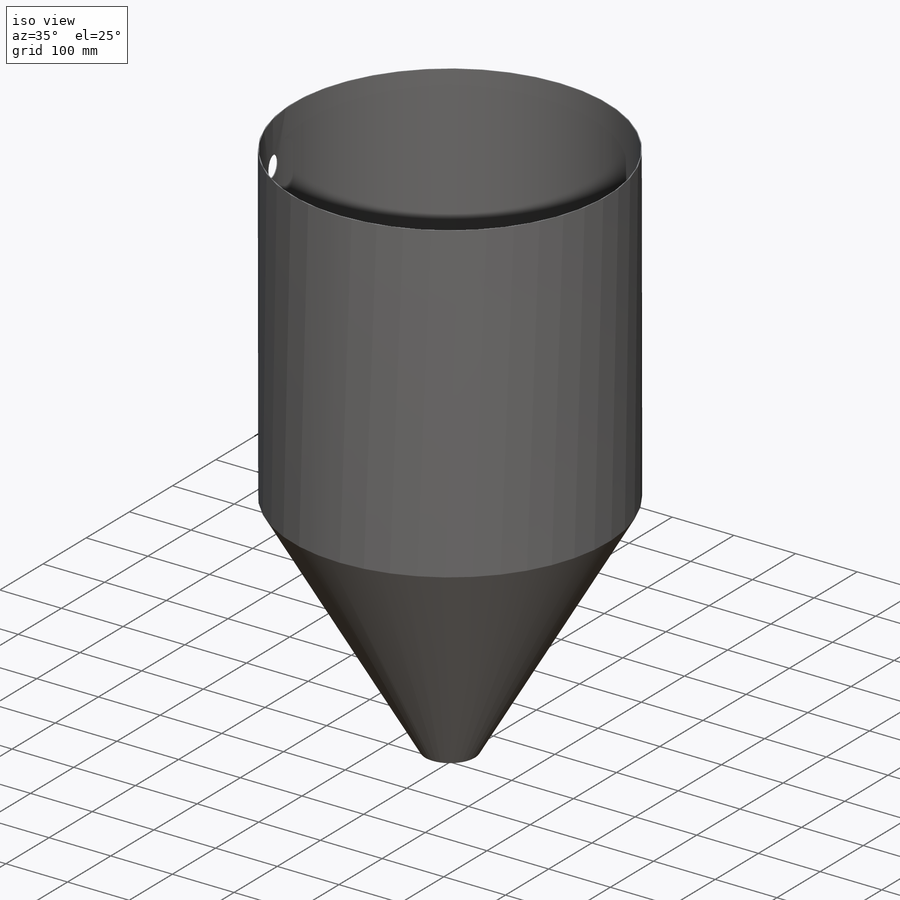
[diagram: iso view]
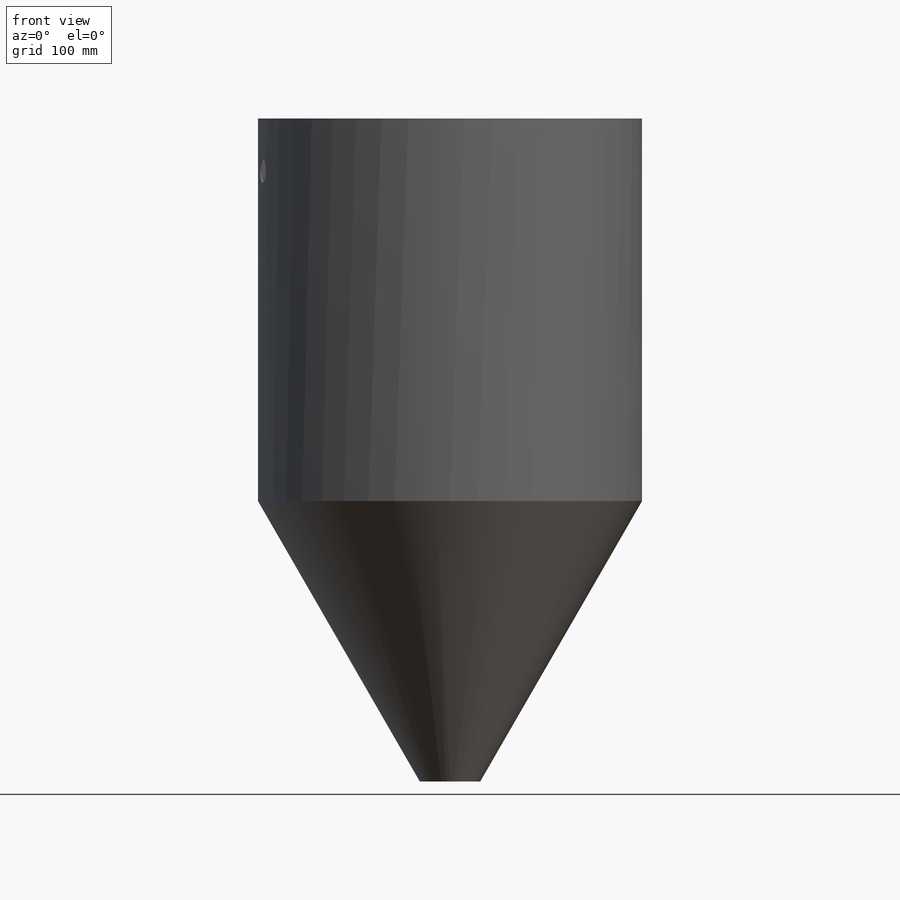
[diagram: front view]
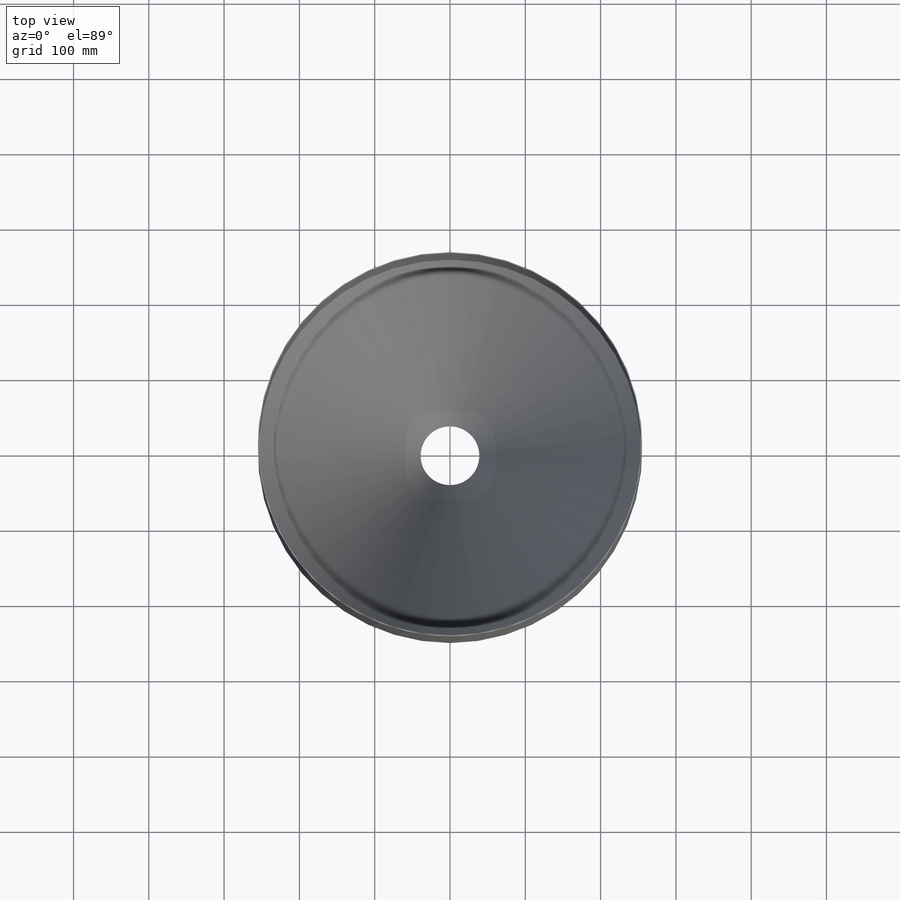
[diagram: top view]
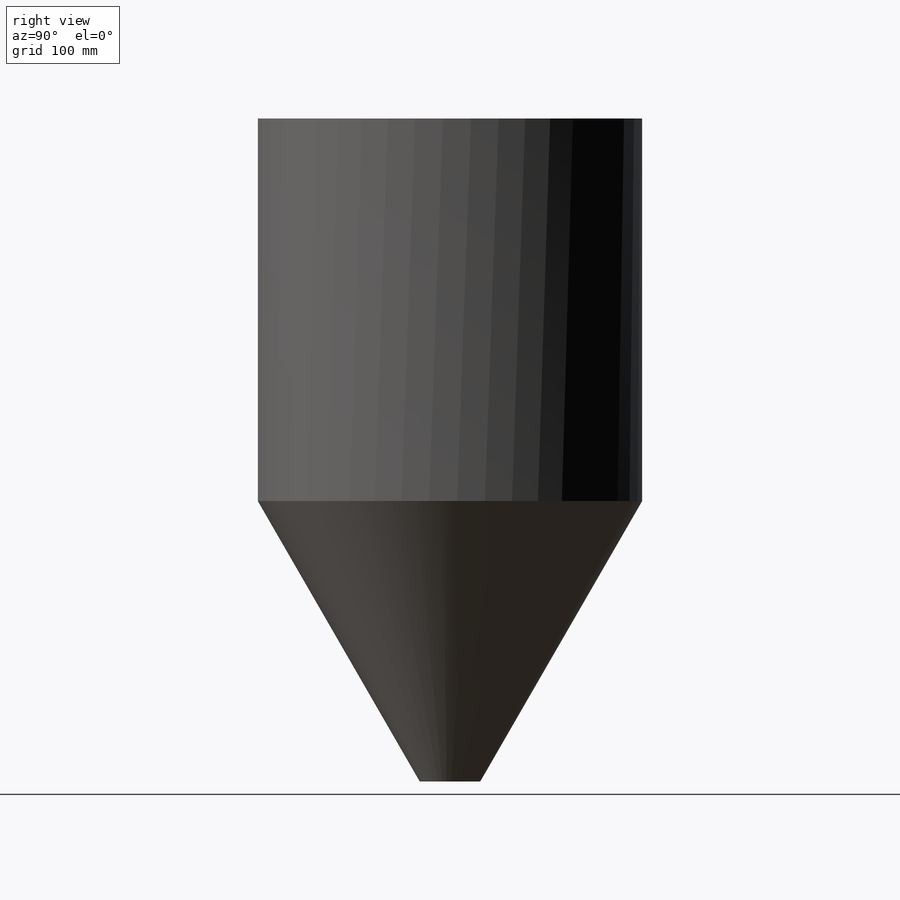
[diagram: right view]
SOLIDWORKS PART (.sldprt)
format: sldprt  version: not decoded by parser v0  size: 156,160 bytes
history: native  units: mm
features: sketch x3, material x1, extrude x1, revolve x1, cut_extrude x1 (+12 scaffold rows collapsed)
feature tree (19):
  scaffold x12  (default folders/planes/origin — collapsed)
  material  "5052-H36"
  sketch  "Sketch1"  dims[D1=508.0mm D2=~1.21412mm]
  extrude  "Boss-Extrude1"  Depth=508mm
  sketch  "Sketch2"  dims[c1.D1=431.8mm c1.D2=406.4mm c1.D3=50.8mm c2.D1=203.2mm c2.D2=863.6mm c3.D2=90.0deg c4.D2=508.0mm c4.D3=508.0mm c4.D1=77.978mm]
  revolve  "Revolve1"  Angle=360deg
  sketch  "Sketch3"  dims[D1=31.75mm]
  cut_extrude  "Cut-Extrude1"  Depth=304.8mm
decode coverage: 6 of 6 modeling features carry decoded parameters
note: ~ marks probable driven/reference dimensions
note: suppression state not decoded; provenance and decode notes live in map.json
